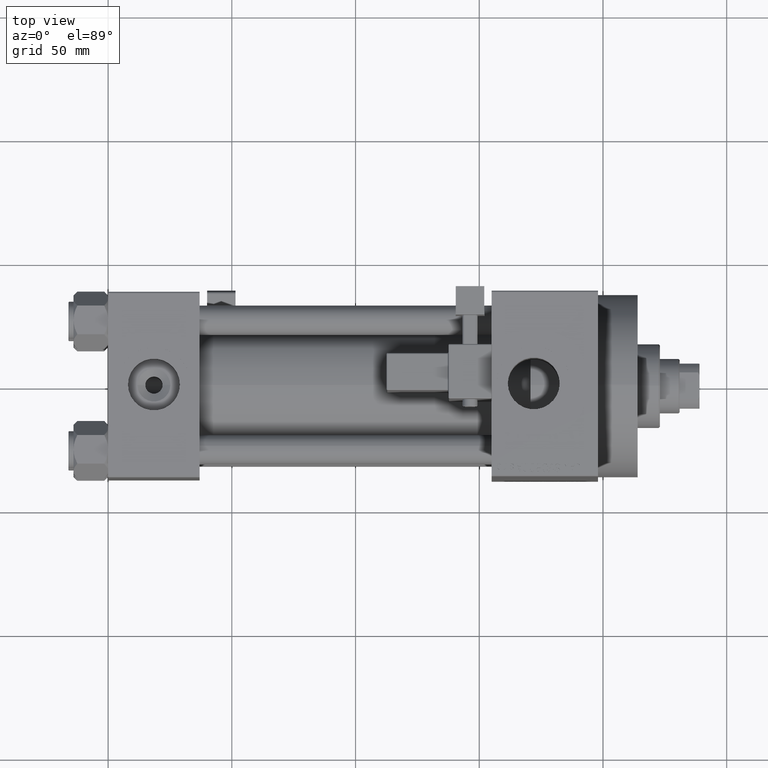
[diagram: clean part render]
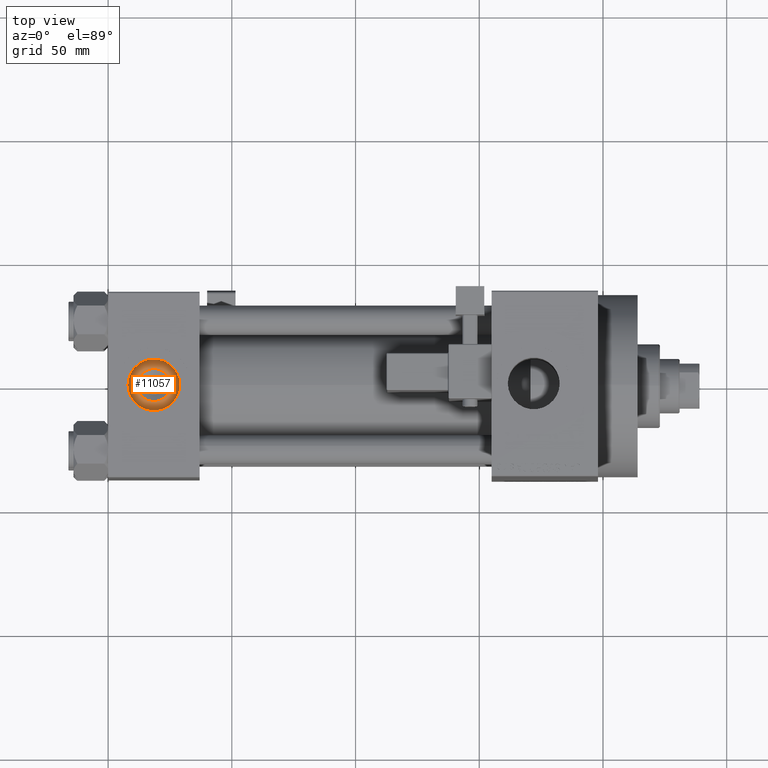
[diagram: same view with one face highlighted and labeled with its STEP entity id]
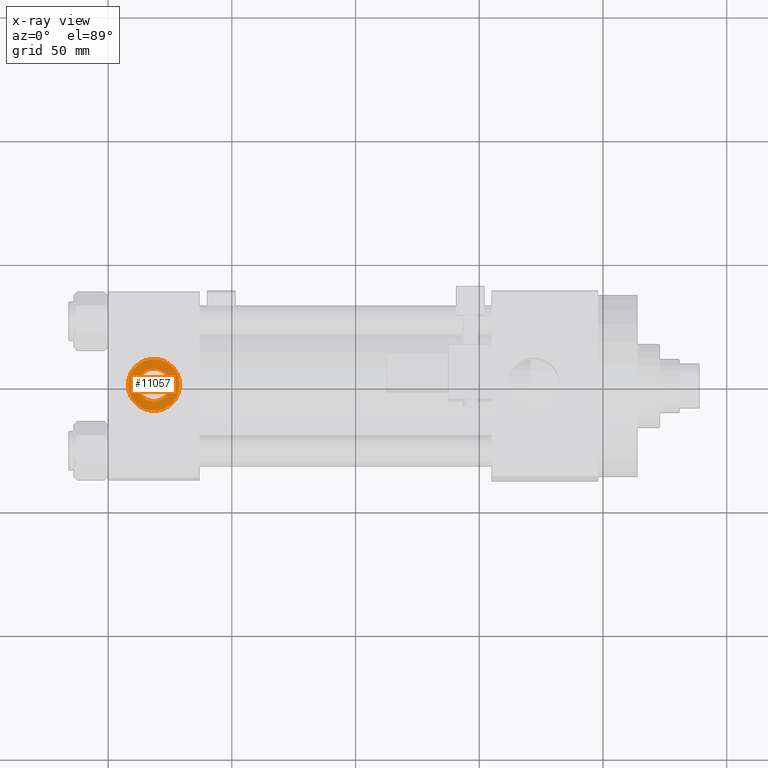
[diagram: x-ray of the same camera — body ghosted, the highlighted face saturated]
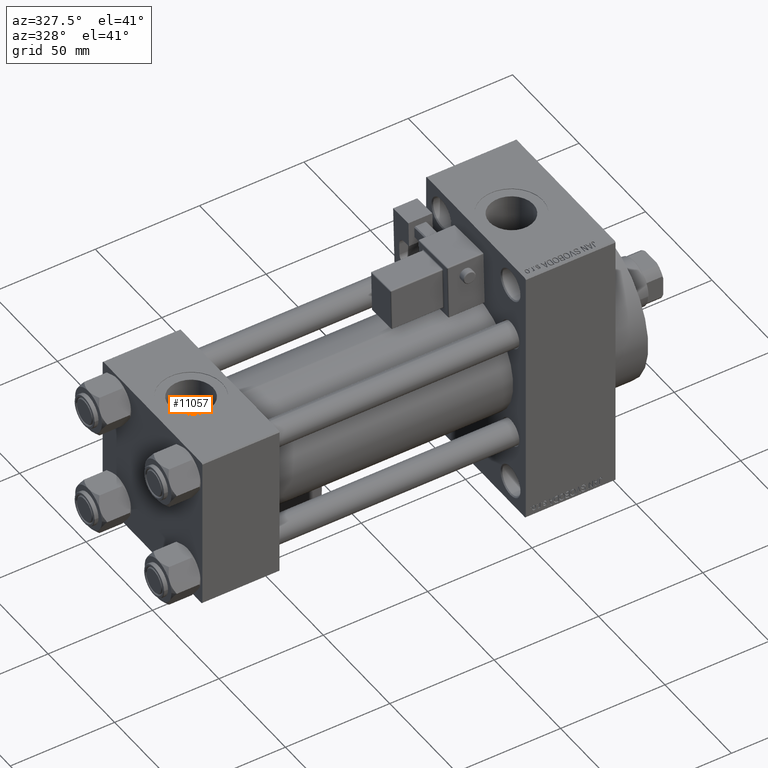
[diagram: same view with one face highlighted and labeled with its STEP entity id]
A machine part, top view. The second image highlights one B-rep face of the part: STEP entity #11057.
The next image is the same camera in x-ray: the body ghosted, the highlighted face saturated — about 0% of this face is hidden behind the body in this view.
A second angle (auxiliary view) of the same face is appended — the face is thin or edge-on in the first view.
In plain terms, the highlighted planar face has unit normal (0, 0, 1).
Its self-contained STEP definition (entity closure, byte-faithful):
#289 = PLANE ( 'NONE',  #37812 ) ;
#1446 = DIRECTION ( 'NONE',  ( 0.000000000000000000, 0.000000000000000000, 1.000000000000000000 ) ) ;
#1996 = EDGE_LOOP ( 'NONE', ( #26768, #37365 ) ) ;
#4548 = VERTEX_POINT ( 'NONE', #43250 ) ;
#5302 = EDGE_CURVE ( 'NONE', #7545, #4548, #16170, .T. ) ;
#7058 = VERTEX_POINT ( 'NONE', #25415 ) ;
#7545 = VERTEX_POINT ( 'NONE', #36370 ) ;
#11057 = ADVANCED_FACE ( 'NONE', ( #42001, #34510 ), #289, .T. ) ;
#11705 = CARTESIAN_POINT ( 'NONE',  ( 11.86000000000001364, -4.391004953296580751E-15, 26.69999999999999929 ) ) ;
#15532 = ORIENTED_EDGE ( 'NONE', *, *, #31842, .T. ) ;
#16170 = CIRCLE ( 'NONE', #29733, 10.48000000000000043 ) ;
#16811 = AXIS2_PLACEMENT_3D ( 'NONE', #48948, #22708, #33457 ) ;
#20391 = DIRECTION ( 'NONE',  ( 0.000000000000000000, 0.000000000000000000, 1.000000000000000000 ) ) ;
#20498 = DIRECTION ( 'NONE',  ( 0.000000000000000000, 0.000000000000000000, 1.000000000000000000 ) ) ;
#20974 = CARTESIAN_POINT ( 'NONE',  ( 18.50000000000000000, -5.204170427930421283E-15, 26.69999999999999929 ) ) ;
#22708 = DIRECTION ( 'NONE',  ( -0.000000000000000000, -0.000000000000000000, -1.000000000000000000 ) ) ;
#23712 = EDGE_CURVE ( 'NONE', #4548, #7545, #47680, .T. ) ;
#24824 = CARTESIAN_POINT ( 'NONE',  ( 18.50000000000000000, -5.204170427930421283E-15, 26.69999999999999929 ) ) ;
#25415 = CARTESIAN_POINT ( 'NONE',  ( 25.13999999999998636, -5.204170427930421283E-15, 26.69999999999999929 ) ) ;
#26768 = ORIENTED_EDGE ( 'NONE', *, *, #23712, .T. ) ;
#28682 = CIRCLE ( 'NONE', #47843, 6.639999999999986358 ) ;
#28714 = DIRECTION ( 'NONE',  ( 1.000000000000000000, 0.000000000000000000, -0.000000000000000000 ) ) ;
#29733 = AXIS2_PLACEMENT_3D ( 'NONE', #31879, #20391, #32116 ) ;
#31406 = ORIENTED_EDGE ( 'NONE', *, *, #33970, .T. ) ;
#31421 = CARTESIAN_POINT ( 'NONE',  ( 18.50000000000000000, -5.204170427930421283E-15, 26.69999999999999929 ) ) ;
#31462 = VERTEX_POINT ( 'NONE', #11705 ) ;
#31670 = DIRECTION ( 'NONE',  ( 1.000000000000000000, 0.000000000000000000, 0.000000000000000000 ) ) ;
#31842 = EDGE_CURVE ( 'NONE', #31462, #7058, #28682, .T. ) ;
#31879 = CARTESIAN_POINT ( 'NONE',  ( 18.50000000000000000, -5.204170427930421283E-15, 26.69999999999999929 ) ) ;
#32116 = DIRECTION ( 'NONE',  ( 1.000000000000000000, 0.000000000000000000, 0.000000000000000000 ) ) ;
#33457 = DIRECTION ( 'NONE',  ( 1.000000000000000000, 0.000000000000000000, 0.000000000000000000 ) ) ;
#33970 = EDGE_CURVE ( 'NONE', #7058, #31462, #47916, .T. ) ;
#34510 = FACE_OUTER_BOUND ( 'NONE', #1996, .T. ) ;
#36370 = CARTESIAN_POINT ( 'NONE',  ( 8.019999999999999574, -3.920740582423995006E-15, 26.69999999999999929 ) ) ;
#37365 = ORIENTED_EDGE ( 'NONE', *, *, #5302, .T. ) ;
#37812 = AXIS2_PLACEMENT_3D ( 'NONE', #20974, #20498, #28714 ) ;
#42001 = FACE_BOUND ( 'NONE', #45089, .T. ) ;
#43250 = CARTESIAN_POINT ( 'NONE',  ( 28.98000000000000043, -5.204170427930421283E-15, 26.69999999999999929 ) ) ;
#43590 = DIRECTION ( 'NONE',  ( 1.000000000000000000, 0.000000000000000000, 0.000000000000000000 ) ) ;
#43823 = DIRECTION ( 'NONE',  ( -0.000000000000000000, -0.000000000000000000, -1.000000000000000000 ) ) ;
#45089 = EDGE_LOOP ( 'NONE', ( #31406, #15532 ) ) ;
#46122 = AXIS2_PLACEMENT_3D ( 'NONE', #31421, #1446, #31670 ) ;
#47680 = CIRCLE ( 'NONE', #46122, 10.48000000000000043 ) ;
#47843 = AXIS2_PLACEMENT_3D ( 'NONE', #24824, #43823, #43590 ) ;
#47916 = CIRCLE ( 'NONE', #16811, 6.639999999999986358 ) ;
#48948 = CARTESIAN_POINT ( 'NONE',  ( 18.50000000000000000, -5.204170427930421283E-15, 26.69999999999999929 ) ) ;